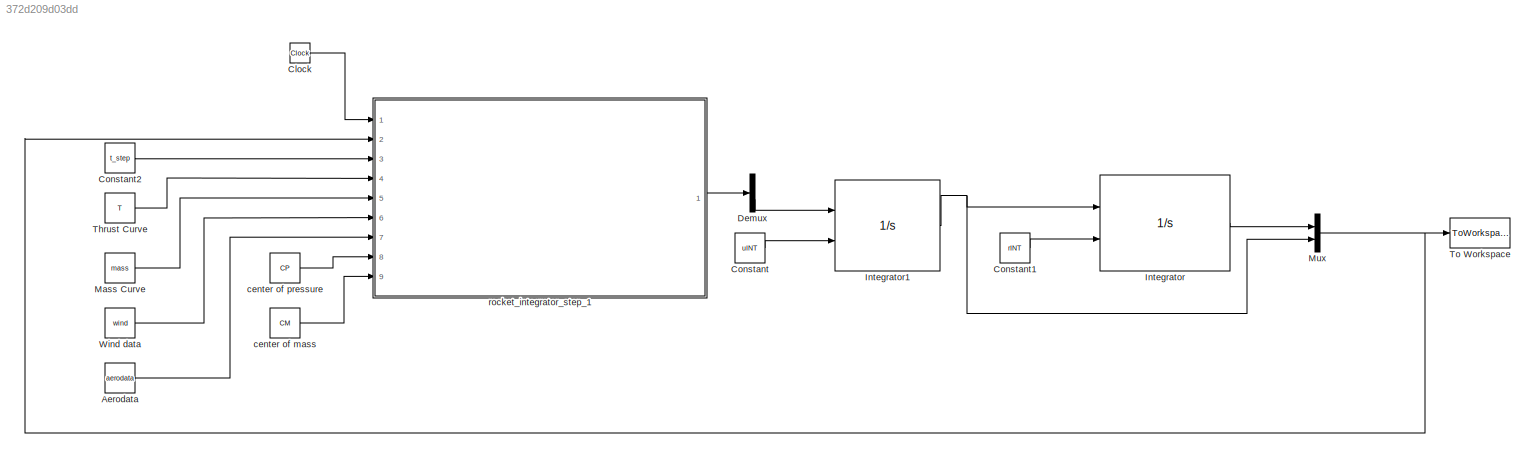
MODEL slx_372d209d03dd
KIND model
CONFIG AbsTol = 1e-9
CONFIG EnableMultiTasking = off
CONFIG FixedStep = 0.01
CONFIG MaxStep = 0.01
CONFIG MinStep = auto
CONFIG RelTol = 1e-6
CONFIG SampleTimeConstraint = Unconstrained
CONFIG Solver = VariableStepAuto
CONFIG SolverName = VariableStepAuto
CONFIG StartTime = 0.0
CONFIG StopTime = 120
BLOCK [Constant] Aerodata 
  Value = aerodata
BLOCK [Clock] Clock
BLOCK [Constant] Constant
  Value = uINT
BLOCK [Constant] Constant1
  Value = rINT
BLOCK [Constant] Constant2
  Value = t_step
BLOCK [Demux] Demux
  DisplayOption = bar
  Outputs = 2
  Ports = [1, 2]
BLOCK [Integrator] Integrator
  InitialConditionSource = external
  Ports = [2, 1]
BLOCK [Integrator] Integrator1
  InitialConditionSource = external
  Ports = [2, 1]
BLOCK [Constant] Mass Curve
  Value = mass
BLOCK [Mux] Mux
  DisplayOption = bar
  Inputs = 2
  Ports = [2, 1]
BLOCK [Constant] Thrust Curve 
  Value = T
BLOCK [ToWorkspace] To Workspace
  FixptAsFi = on
  MaxDataPoints = inf
  Ports = [1]
  SampleTime = -1
  Save2DSignal = 3-D array (concatenate along third dimension)
  VariableName = stateout
BLOCK [Constant] Wind data
  Value = wind
BLOCK [Constant] center of mass 
  Value = CM
BLOCK [Constant] center of pressure 
  Value = CP
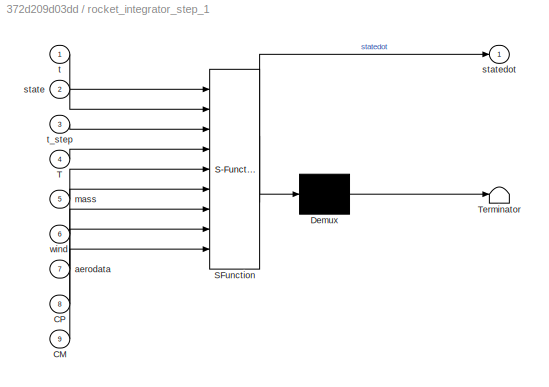
BLOCK [SubSystem] rocket_integrator_step_1 
  ErrorFcn = Stateflow.Translate.translate
  PermitHierarchicalResolution = ExplicitOnly
  Ports = [9, 1]
  RequestExecContextInheritance = off
  SFBlockType = MATLAB Function
  TreatAsAtomicUnit = on
  Variant = off
BLOCK [Demux] rocket_integrator_step_1 / Demux 
  Outputs = 1
  Ports = [1, 1]
BLOCK [S-Function] rocket_integrator_step_1 / SFunction 
  EnableBusSupport = on
  FunctionName = sf_sfun
  PortCounts = [9 2]
  Ports = [9, 2]
  SFcnIsStateOwnerBlock = off
  SFunctionDeploymentMode = off
  Tag = Stateflow S-Function solver_simulink 2
BLOCK [Terminator] rocket_integrator_step_1 / Terminator 
BLOCK [Inport] rocket_integrator_step_1 /CM
  IconDisplay = Port number
  Port = 9
BLOCK [Inport] rocket_integrator_step_1 /CP
  IconDisplay = Port number
  Port = 8
BLOCK [Inport] rocket_integrator_step_1 /T
  IconDisplay = Port number
  Port = 4
BLOCK [Inport] rocket_integrator_step_1 /aerodata
  IconDisplay = Port number
  Port = 7
BLOCK [Inport] rocket_integrator_step_1 /mass
  IconDisplay = Port number
  Port = 5
BLOCK [Inport] rocket_integrator_step_1 /state
  IconDisplay = Port number
  Port = 2
BLOCK [Outport] rocket_integrator_step_1 /statedot
  IconDisplay = Port number
BLOCK [Inport] rocket_integrator_step_1 /t
  IconDisplay = Port number
BLOCK [Inport] rocket_integrator_step_1 /t_step
  IconDisplay = Port number
  Port = 3
BLOCK [Inport] rocket_integrator_step_1 /wind
  IconDisplay = Port number
  Port = 6
LINE Aerodata :1 -> rocket_integrator_step_1 :7
LINE Clock:1 -> rocket_integrator_step_1 :1
LINE Constant1:1 -> Integrator:2
LINE Constant2:1 -> rocket_integrator_step_1 :3
LINE Constant:1 -> Integrator1:2
LINE Demux:2 -> Integrator1:1
NET Integrator1:1 -> Integrator:1, Mux:2
LINE Integrator:1 -> Mux:1
LINE Mass Curve:1 -> rocket_integrator_step_1 :5
NET Mux:1 -> To Workspace:1, rocket_integrator_step_1 :2
LINE Thrust Curve :1 -> rocket_integrator_step_1 :4
LINE Wind data:1 -> rocket_integrator_step_1 :6
LINE center of mass :1 -> rocket_integrator_step_1 :9
LINE center of pressure :1 -> rocket_integrator_step_1 :8
LINE rocket_integrator_step_1 :1 -> Demux:1
note: NET lines group one-source signal fan-out (src -> all destinations, sorted); 1:1 wires keep LINE
CHART rocket_integrator_step_1
 states=1 transitions=1
  STATE_LABEL 'eML_blk_kernel()'
  STATE_LABEL "SCRIPT:\nfunction statedot = dot(t, state, t_step, T, mass, wind, aerodata, CP, CM)\n\n% avoid loading too many things. happens once each round of iterations\nworkspace = load('import2simulink.mat');\nrocket = workspace.rocket;\n\n% if rocket is at apogee, set theta = -180deg\n\nstatedot = zeros(6,1);      % initializes an empty vector\nstatedot(1:3) = state(4:6); % vx, vy, omega\n\n% lookup current mass and ...<+643ch>"
